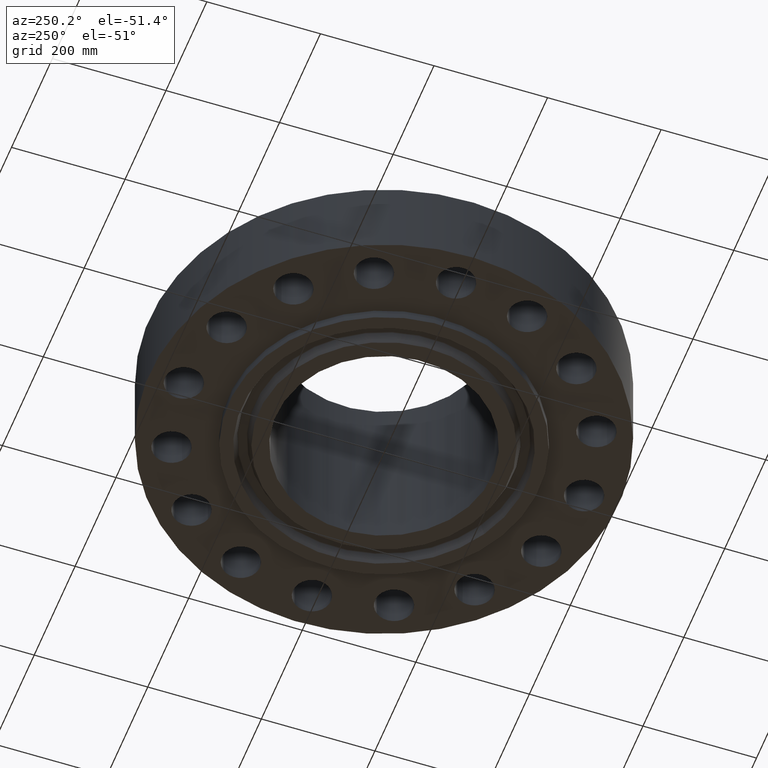
[diagram: clean part render]
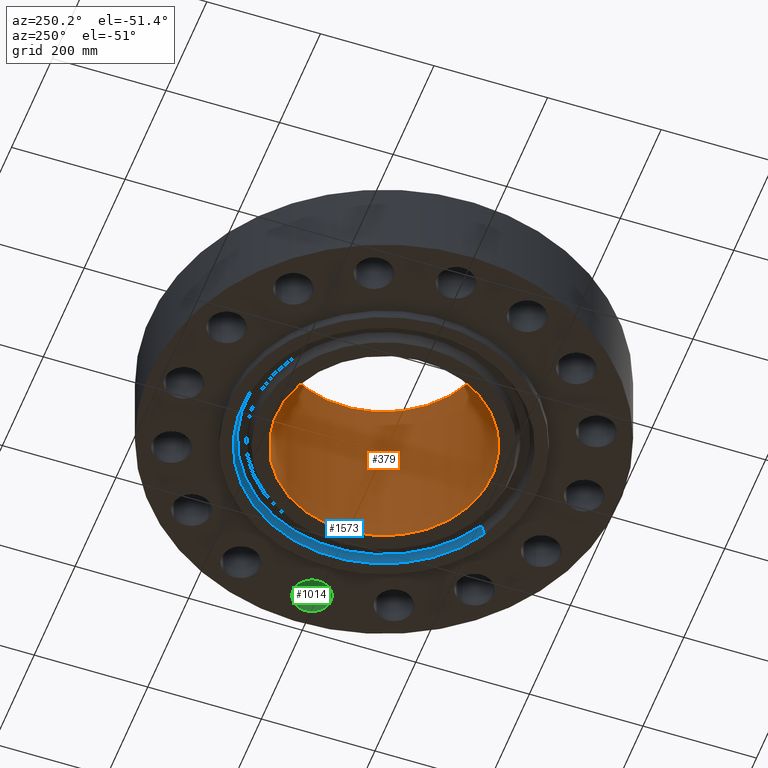
[diagram: same view with three faces highlighted in distinct colors, each labeled with its STEP entity id]
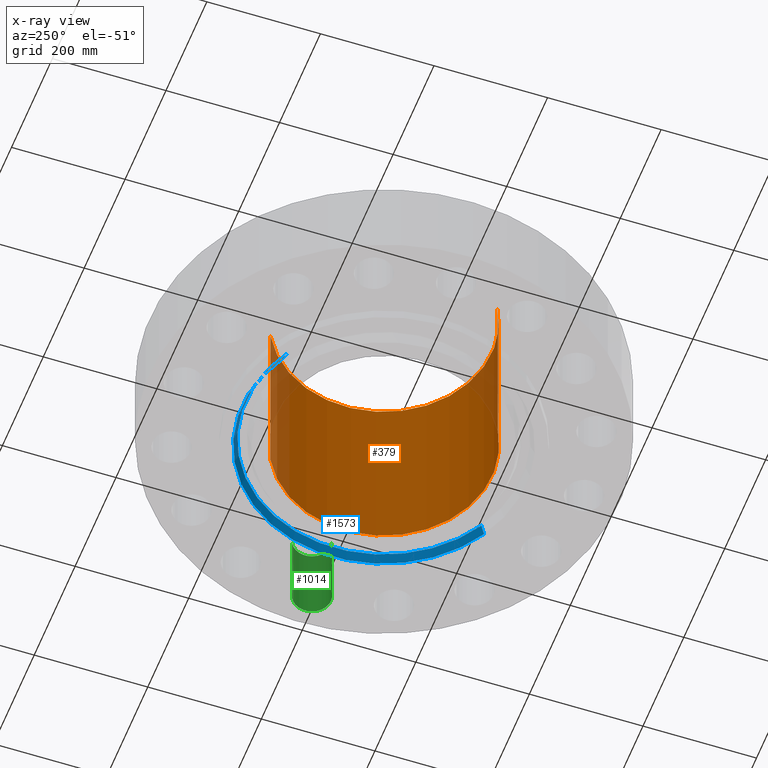
[diagram: x-ray of the same camera — body ghosted, the three highlighted faces saturated]
A machine part, auxiliary view with three faces highlighted in distinct colors.
The next image is the same camera in x-ray (body ghosted, the three faces saturated) — at least one of them is partly hidden behind the body in this view.
Their STEP definitions:

[orange] entity #379 — the highlighted cylindrical surface (partial cylindrical patch) has radius 190.5 mm, axis along (0, 0, -1).
#343=AXIS2_PLACEMENT_3D('Cylinder Axis2P3D',#340,#341,#342) ;
#347=AXIS2_PLACEMENT_3D('Circle Axis2P3D',#345,#346,$) ;
#363=AXIS2_PLACEMENT_3D('Circle Axis2P3D',#361,#362,$) ;
#340=CARTESIAN_POINT('Axis2P3D Location',(0.,0.,5.78100000002)) ;
#345=CARTESIAN_POINT('Axis2P3D Location',(0.,0.,12.25)) ;
#349=CARTESIAN_POINT('Vertex',(3.59569153955,6.5818692142,12.25)) ;
#351=CARTESIAN_POINT('Vertex',(-3.59569153955,-6.5818692142,12.25)) ;
#354=CARTESIAN_POINT('Line Origine',(3.59569153955,6.5818692142,5.78100000002)) ;
#358=CARTESIAN_POINT('Vertex',(3.59569153955,6.5818692142,-0.688000000003)) ;
#361=CARTESIAN_POINT('Axis2P3D Location',(0.,0.,-0.688000000003)) ;
#365=CARTESIAN_POINT('Vertex',(-3.59569153955,-6.5818692142,-0.688000000003)) ;
#368=CARTESIAN_POINT('Line Origine',(-3.59569153955,-6.5818692142,5.78100000002)) ;
#341=DIRECTION('Axis2P3D Direction',(0.,0.,-0.0393700787402)) ;
#342=DIRECTION('Axis2P3D XDirection',(-0.0188750212049,-0.0345504945626,0.)) ;
#346=DIRECTION('Axis2P3D Direction',(0.,0.,-0.0393700787402)) ;
#355=DIRECTION('Vector Direction',(0.,0.,-0.0393700787402)) ;
#362=DIRECTION('Axis2P3D Direction',(0.,0.,-0.0393700787402)) ;
#369=DIRECTION('Vector Direction',(0.,0.,-0.0393700787402)) ;
#356=VECTOR('Line Direction',#355,0.0393700787402) ;
#370=VECTOR('Line Direction',#369,0.0393700787402) ;
#374=ORIENTED_EDGE('',*,*,#353,.F.) ;
#375=ORIENTED_EDGE('',*,*,#360,.T.) ;
#376=ORIENTED_EDGE('',*,*,#367,.T.) ;
#377=ORIENTED_EDGE('',*,*,#372,.F.) ;
#379=ADVANCED_FACE('PartBody',(#378),#344,.F.) ;
#348=CIRCLE('generated circle',#347,7.50000000003) ;
#364=CIRCLE('generated circle',#363,7.50000000003) ;
#344=CYLINDRICAL_SURFACE('generated cylinder',#343,7.50000000003) ;
#353=EDGE_CURVE('',#350,#352,#348,.T.) ;
#360=EDGE_CURVE('',#350,#359,#357,.T.) ;
#367=EDGE_CURVE('',#359,#366,#364,.T.) ;
#372=EDGE_CURVE('',#352,#366,#371,.T.) ;
#373=EDGE_LOOP('',(#374,#375,#376,#377)) ;
#378=FACE_OUTER_BOUND('',#373,.T.) ;
#357=LINE('Line',#354,#356) ;
#371=LINE('Line',#368,#370) ;
#350=VERTEX_POINT('',#349) ;
#352=VERTEX_POINT('',#351) ;
#359=VERTEX_POINT('',#358) ;
#366=VERTEX_POINT('',#365) ;

[blue] entity #1573 — the highlighted conical surface has half-angle 23 deg.
#1434=AXIS2_PLACEMENT_3D('Circle Axis2P3D',#1432,#1433,$) ;
#1508=AXIS2_PLACEMENT_3D('Cone Axis2P3D',#1505,#1506,#1507) ;
#1529=AXIS2_PLACEMENT_3D('Circle Axis2P3D',#1527,#1528,$) ;
#1427=CARTESIAN_POINT('Vertex',(4.71946500204,-8.63892273928,-0.688000000003)) ;
#1429=CARTESIAN_POINT('Vertex',(-4.71946500204,8.63892273928,-0.688000000003)) ;
#1432=CARTESIAN_POINT('Axis2P3D Location',(8.39223703654E-016,3.35689481461E-015,-0.688000000003)) ;
#1474=CARTESIAN_POINT('Vertex',(-4.59110914086,8.40396891139,-0.0572712739222)) ;
#1476=CARTESIAN_POINT('Vertex',(4.59110914086,-8.40396891139,-0.0572712739222)) ;
#1505=CARTESIAN_POINT('Axis2P3D Location',(0.,0.,-0.0572712739222)) ;
#1510=CARTESIAN_POINT('Line Origine',(-4.65528707145,8.52144582534,-0.372635636962)) ;
#1515=CARTESIAN_POINT('Line Origine',(4.65528707145,-8.52144582534,-0.372635636962)) ;
#1527=CARTESIAN_POINT('Axis2P3D Location',(0.,0.,-0.0572712739222)) ;
#1433=DIRECTION('Axis2P3D Direction',(0.,0.,-0.0393700787402)) ;
#1506=DIRECTION('Axis2P3D Direction',(-0.,-0.,-0.0393700787402)) ;
#1507=DIRECTION('Axis2P3D XDirection',(-0.0188750212049,0.0345504945626,0.)) ;
#1511=DIRECTION('Vector Direction',(-0.00737505833565,0.0134999537303,-0.0362403485611)) ;
#1516=DIRECTION('Vector Direction',(0.00737505833565,-0.0134999537303,-0.0362403485611)) ;
#1528=DIRECTION('Axis2P3D Direction',(0.,0.,0.0393700787402)) ;
#1512=VECTOR('Line Direction',#1511,0.0393700787402) ;
#1517=VECTOR('Line Direction',#1516,0.0393700787402) ;
#1568=ORIENTED_EDGE('',*,*,#1436,.T.) ;
#1569=ORIENTED_EDGE('',*,*,#1519,.T.) ;
#1570=ORIENTED_EDGE('',*,*,#1531,.T.) ;
#1571=ORIENTED_EDGE('',*,*,#1514,.F.) ;
#1573=ADVANCED_FACE('PartBody',(#1572),#1509,.F.) ;
#1435=CIRCLE('generated circle',#1434,9.84400000004) ;
#1530=CIRCLE('generated circle',#1529,9.57627153996) ;
#1509=CONICAL_SURFACE('Cone',#1508,9.57627153996,0.401425727959) ;
#1436=EDGE_CURVE('',#1430,#1428,#1435,.T.) ;
#1514=EDGE_CURVE('',#1430,#1475,#1513,.F.) ;
#1519=EDGE_CURVE('',#1428,#1477,#1518,.F.) ;
#1531=EDGE_CURVE('',#1477,#1475,#1530,.T.) ;
#1567=EDGE_LOOP('',(#1568,#1569,#1570,#1571)) ;
#1572=FACE_OUTER_BOUND('',#1567,.T.) ;
#1513=LINE('Line',#1510,#1512) ;
#1518=LINE('Line',#1515,#1517) ;
#1428=VERTEX_POINT('',#1427) ;
#1430=VERTEX_POINT('',#1429) ;
#1475=VERTEX_POINT('',#1474) ;
#1477=VERTEX_POINT('',#1476) ;

[green] entity #1014 — the highlighted cylindrical surface (edge-blend (fillet) strip) has radius 33.401 mm, axis along (0, -0, -1).
#554=AXIS2_PLACEMENT_3D('Circle Axis2P3D',#552,#553,$) ;
#987=AXIS2_PLACEMENT_3D('Cylinder Axis2P3D',#984,#985,#986) ;
#1005=AXIS2_PLACEMENT_3D('Circle Axis2P3D',#1003,#1004,$) ;
#552=CARTESIAN_POINT('Axis2P3D Location',(13.8750000001,-2.23792987641E-015,0.)) ;
#556=CARTESIAN_POINT('Vertex',(14.5054445833,1.15402106889,0.)) ;
#558=CARTESIAN_POINT('Vertex',(13.2445554168,-1.15402106889,0.)) ;
#984=CARTESIAN_POINT('Axis2P3D Location',(13.8750000001,-1.3883311595E-015,5.74606299215)) ;
#989=CARTESIAN_POINT('Line Origine',(14.5054445833,1.15402106889,2.87500000001)) ;
#993=CARTESIAN_POINT('Vertex',(14.5054445833,1.15402106889,5.75000000002)) ;
#996=CARTESIAN_POINT('Line Origine',(13.2445554168,-1.15402106889,2.87500000001)) ;
#1000=CARTESIAN_POINT('Vertex',(13.2445554168,-1.15402106889,5.75000000002)) ;
#1003=CARTESIAN_POINT('Axis2P3D Location',(13.8750000001,-1.3883311595E-015,5.75000000002)) ;
#553=DIRECTION('Axis2P3D Direction',(0.,0.,-0.0393700787402)) ;
#985=DIRECTION('Axis2P3D Direction',(0.,-0.,-0.0393700787402)) ;
#986=DIRECTION('Axis2P3D XDirection',(-0.0188750212049,-0.0345504945626,0.)) ;
#990=DIRECTION('Vector Direction',(0.,0.,-0.0393700787402)) ;
#997=DIRECTION('Vector Direction',(0.,0.,-0.0393700787402)) ;
#1004=DIRECTION('Axis2P3D Direction',(0.,-0.,-0.0393700787402)) ;
#991=VECTOR('Line Direction',#990,0.0393700787402) ;
#998=VECTOR('Line Direction',#997,0.0393700787402) ;
#1009=ORIENTED_EDGE('',*,*,#995,.F.) ;
#1010=ORIENTED_EDGE('',*,*,#560,.T.) ;
#1011=ORIENTED_EDGE('',*,*,#1002,.T.) ;
#1012=ORIENTED_EDGE('',*,*,#1007,.F.) ;
#1014=ADVANCED_FACE('PartBody',(#1013),#988,.F.) ;
#555=CIRCLE('generated circle',#554,1.31500000001) ;
#1006=CIRCLE('generated circle',#1005,1.31500000001) ;
#988=CYLINDRICAL_SURFACE('generated cylinder',#987,1.31500000001) ;
#560=EDGE_CURVE('',#557,#559,#555,.T.) ;
#995=EDGE_CURVE('',#557,#994,#992,.F.) ;
#1002=EDGE_CURVE('',#559,#1001,#999,.F.) ;
#1007=EDGE_CURVE('',#994,#1001,#1006,.T.) ;
#1008=EDGE_LOOP('',(#1009,#1010,#1011,#1012)) ;
#1013=FACE_OUTER_BOUND('',#1008,.T.) ;
#992=LINE('Line',#989,#991) ;
#999=LINE('Line',#996,#998) ;
#557=VERTEX_POINT('',#556) ;
#559=VERTEX_POINT('',#558) ;
#994=VERTEX_POINT('',#993) ;
#1001=VERTEX_POINT('',#1000) ;